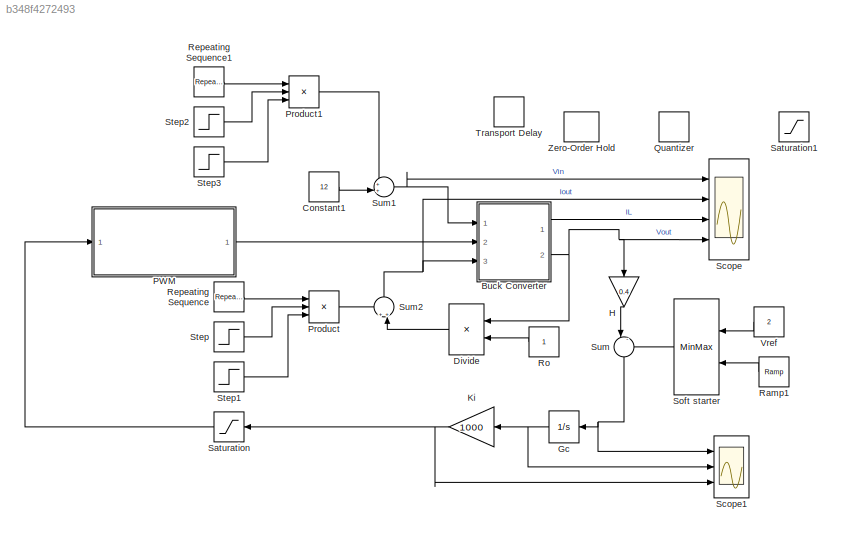
MODEL slx_b348f4272493
KIND model
CONFIG AbsTol = auto
CONFIG EnableMultiTasking = on
CONFIG FixedStep = auto
CONFIG MaxStep = 0.1e-6
CONFIG MinStep = auto
CONFIG RelTol = 1e-3
CONFIG SampleTimeConstraint = Unconstrained
CONFIG Solver = ode45
CONFIG SolverName = ode45
CONFIG StartTime = 0.0
CONFIG StopTime = 0.03
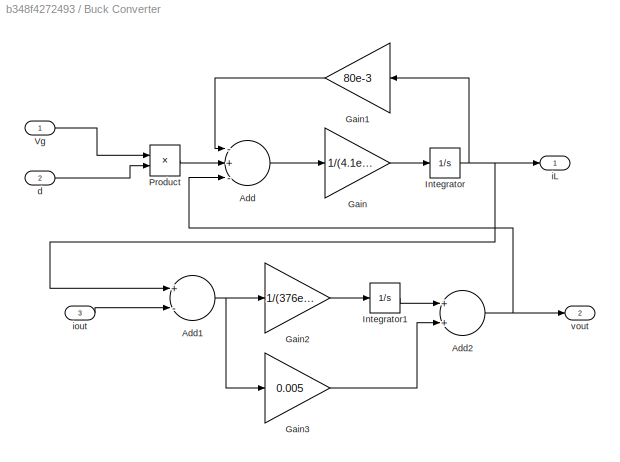
BLOCK [SubSystem] Buck Converter
  Ports = [3, 2]
  RequestExecContextInheritance = off
BLOCK [Sum] Buck Converter/Add
  InputSameDT = off
  Inputs = -+-
  OutDataTypeStr = Inherit: Inherit via internal rule
  Ports = [3, 1]
  SaturateOnIntegerOverflow = off
BLOCK [Sum] Buck Converter/Add1
  InputSameDT = off
  Inputs = +-
  OutDataTypeStr = Inherit: Inherit via internal rule
  Ports = [2, 1]
  SaturateOnIntegerOverflow = off
BLOCK [Sum] Buck Converter/Add2
  InputSameDT = off
  OutDataTypeStr = Inherit: Inherit via internal rule
  Ports = [2, 1]
  SaturateOnIntegerOverflow = off
BLOCK [Gain] Buck Converter/Gain
  Gain = 1/(4.1e-6)
  OutDataTypeStr = Inherit: Inherit via internal rule
  ParamDataTypeStr = Inherit: Inherit via internal rule
  SaturateOnIntegerOverflow = off
BLOCK [Gain] Buck Converter/Gain1
  Gain = 80e-3
  OutDataTypeStr = Inherit: Inherit via internal rule
  ParamDataTypeStr = Inherit: Inherit via internal rule
  SaturateOnIntegerOverflow = off
BLOCK [Gain] Buck Converter/Gain2
  Gain = 1/(376e-6)
  OutDataTypeStr = Inherit: Inherit via internal rule
  ParamDataTypeStr = Inherit: Inherit via internal rule
  SaturateOnIntegerOverflow = off
BLOCK [Gain] Buck Converter/Gain3
  Gain = 0.005
  OutDataTypeStr = Inherit: Inherit via internal rule
  ParamDataTypeStr = Inherit: Inherit via internal rule
  SaturateOnIntegerOverflow = off
BLOCK [Integrator] Buck Converter/Integrator
  Ports = [1, 1]
BLOCK [Integrator] Buck Converter/Integrator1
  Ports = [1, 1]
BLOCK [Product] Buck Converter/Product
  InputSameDT = off
  OutDataTypeStr = Inherit: Inherit via internal rule
  Ports = [2, 1]
  RndMeth = Floor
  SaturateOnIntegerOverflow = off
BLOCK [Inport] Buck Converter/Vg
  IconDisplay = Port number
BLOCK [Inport] Buck Converter/d
  IconDisplay = Port number
  Port = 2
BLOCK [Outport] Buck Converter/iL
  IconDisplay = Port number
BLOCK [Inport] Buck Converter/iout
  IconDisplay = Port number
  Port = 3
BLOCK [Outport] Buck Converter/vout 
  IconDisplay = Port number
  Port = 2
BLOCK [Constant] Constant1
  Value = 12
BLOCK [Product] Divide
  InputSameDT = off
  Inputs = */
  OutDataTypeStr = Inherit: Inherit via internal rule
  Ports = [2, 1]
  RndMeth = Floor
  SaturateOnIntegerOverflow = off
BLOCK [Integrator] Gc
  LowerSaturationLimit = 0.1/1000
  Ports = [1, 1]
  UpperSaturationLimit = 0.9/1000
BLOCK [Gain] H
  Gain = 0.4
  OutDataTypeStr = Inherit: Inherit via internal rule
  ParamDataTypeStr = Inherit: Inherit via internal rule
  SaturateOnIntegerOverflow = off
BLOCK [Gain] Ki
  Gain = 1000
  OutDataTypeStr = Inherit: Inherit via internal rule
  ParamDataTypeStr = Inherit: Inherit via internal rule
  SaturateOnIntegerOverflow = off
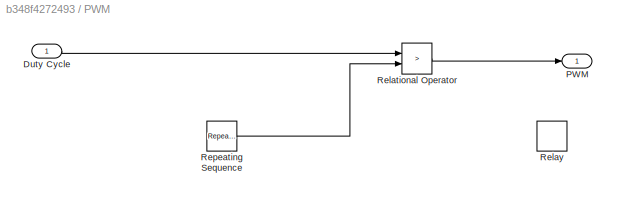
BLOCK [SubSystem] PWM
  Ports = [1, 1]
  RequestExecContextInheritance = off
BLOCK [Inport] PWM/Duty Cycle
  IconDisplay = Port number
BLOCK [Outport] PWM/PWM
  IconDisplay = Port number
BLOCK [RelationalOperator] PWM/Relational Operator
  InputSameDT = off
  Operator = >
  OutDataTypeStr = boolean
  Ports = [2, 1]
BLOCK [Relay] PWM/Relay
BLOCK [Reference] PWM/Repeating Sequence  REF=simulink/Sources/Repeating
Sequence
  Ports = [0, 1]
  SourceBlock = simulink/Sources/Repeating\nSequence
  SourceProductBaseCode = SL
  SourceProductName = Simulink
  SourceType = Repeating table
BLOCK [Product] Product
  InputSameDT = off
  Inputs = 3
  OutDataTypeStr = Inherit: Inherit via internal rule
  Ports = [3, 1]
  RndMeth = Floor
  SaturateOnIntegerOverflow = off
BLOCK [Product] Product1
  InputSameDT = off
  Inputs = 3
  OutDataTypeStr = Inherit: Inherit via internal rule
  Ports = [3, 1]
  RndMeth = Floor
  SaturateOnIntegerOverflow = off
BLOCK [Quantizer] Quantizer
  QuantizationInterval = 1/64
BLOCK [Reference] Ramp1  REF=simulink/Sources/Ramp
  Ports = [0, 1]
  SourceBlock = simulink/Sources/Ramp
  SourceProductBaseCode = SL
  SourceProductName = Simulink
  SourceType = Ramp
BLOCK [Reference] Repeating Sequence  REF=simulink/Sources/Repeating
Sequence
  Ports = [0, 1]
  SourceBlock = simulink/Sources/Repeating\nSequence
  SourceProductBaseCode = SL
  SourceProductName = Simulink
  SourceType = Repeating table
BLOCK [Reference] Repeating Sequence1  REF=simulink/Sources/Repeating
Sequence
  Ports = [0, 1]
  SourceBlock = simulink/Sources/Repeating\nSequence
  SourceProductBaseCode = SL
  SourceProductName = Simulink
  SourceType = Repeating table
BLOCK [Constant] Ro
BLOCK [Saturate] Saturation
  InputPortMap = u0
  LowerLimit = 0.05
  Ports = [1, 1]
  UpperLimit = 0.9
BLOCK [Saturate] Saturation1
  InputPortMap = u0
  LowerLimit = -1
  Ports = [1, 1]
  UpperLimit = 1
BLOCK [Scope] Scope
  Floating = off
  NumInputPorts = 4
  Ports = [4]
  ScopeSpecificationString = Simulink.scopes.TimeScopeBlockCfg('CurrentConfiguration', extmgr.ConfigurationSet(extmgr.Configuration('Core','General UI',true),extmgr.Configuration('Core','Source UI',true),extmgr.Configuration('Sources','WiredSimulink',true,'DataLoggingSaveFormat','StructureWithTime','DataLoggingDecimation','1','DataLoggingDecimateData',true),extmgr.Configuration('Visuals','Time Domain',true,'SerializedDisplays...<+3745ch>
BLOCK [Scope] Scope1
  Floating = off
  NumInputPorts = 3
  Ports = [3]
  ScopeSpecificationString = Simulink.scopes.TimeScopeBlockCfg('CurrentConfiguration', extmgr.ConfigurationSet(extmgr.Configuration('Core','General UI',true),extmgr.Configuration('Core','Source UI',true),extmgr.Configuration('Sources','WiredSimulink',true,'DataLoggingVariableName','ScopeData1','DataLoggingSaveFormat','StructureWithTime','DataLoggingDecimation','1','DataLoggingDecimateData',true),extmgr.Configuration('Visuals'...<+3673ch>
BLOCK [MinMax] Soft starter 
  InputSameDT = off
  Inputs = 2
  Ports = [2, 1]
  SaturateOnIntegerOverflow = off
BLOCK [Step] Step
  SampleTime = 0
  Time = .01
BLOCK [Step] Step1
  After = 0
  Before = 1
  SampleTime = 0
  Time = .013
BLOCK [Step] Step2
  SampleTime = 0
  Time = .02
BLOCK [Step] Step3
  After = 0
  Before = 1
  SampleTime = 0
  Time = .023
BLOCK [Sum] Sum
  IconShape = round
  InputSameDT = off
  Inputs = |-+
  OutDataTypeStr = Inherit: Inherit via internal rule
  Ports = [2, 1]
  SaturateOnIntegerOverflow = off
BLOCK [Sum] Sum1
  IconShape = round
  InputSameDT = off
  Inputs = ++|
  OutDataTypeStr = Inherit: Inherit via internal rule
  Ports = [2, 1]
  SaturateOnIntegerOverflow = off
BLOCK [Sum] Sum2
  IconShape = round
  InputSameDT = off
  Inputs = ++|
  OutDataTypeStr = Inherit: Inherit via internal rule
  Ports = [2, 1]
  SaturateOnIntegerOverflow = off
BLOCK [TransportDelay] Transport Delay
  DelayTime = 4e-6
  Ports = [1, 1]
BLOCK [Constant] Vref
  Value = 2
BLOCK [ZeroOrderHold] Zero-Order Hold
  SampleTime = 10e-6
NET Buck Converter/Add1:1 -> Buck Converter/Gain2:1, Buck Converter/Gain3:1
NET Buck Converter/Add2:1 -> Buck Converter/Add:3, Buck Converter/vout :1
LINE Buck Converter/Add:1 -> Buck Converter/Gain:1
LINE Buck Converter/Gain1:1 -> Buck Converter/Add:1
LINE Buck Converter/Gain2:1 -> Buck Converter/Integrator1:1
LINE Buck Converter/Gain3:1 -> Buck Converter/Add2:2
LINE Buck Converter/Gain:1 -> Buck Converter/Integrator:1
LINE Buck Converter/Integrator1:1 -> Buck Converter/Add2:1
NET Buck Converter/Integrator:1 -> Buck Converter/Add1:1, Buck Converter/Gain1:1, Buck Converter/iL:1
LINE Buck Converter/Product:1 -> Buck Converter/Add:2
LINE Buck Converter/Vg:1 -> Buck Converter/Product:1
LINE Buck Converter/d:1 -> Buck Converter/Product:2
LINE Buck Converter/iout:1 -> Buck Converter/Add1:2
LINE Buck Converter:1 -> Scope:3
NET Buck Converter:2 -> Divide:1, H:1, Scope:4
LINE Constant1:1 -> Sum1:2
LINE Divide:1 -> Sum2:2
NET Gc:1 -> Ki:1, Scope1:2
LINE H:1 -> Sum:1
NET Ki:1 -> Saturation:1, Scope1:3
LINE PWM/Duty Cycle:1 -> PWM/Relational Operator:1
LINE PWM/Relational Operator:1 -> PWM/PWM:1
LINE PWM/Repeating Sequence:1 -> PWM/Relational Operator:2
LINE PWM:1 -> Buck Converter:2
LINE Product1:1 -> Sum1:1
LINE Product:1 -> Sum2:1
LINE Ramp1:1 -> Soft starter :2
LINE Repeating Sequence1:1 -> Product1:1
LINE Repeating Sequence:1 -> Product:1
LINE Ro:1 -> Divide:2
LINE Saturation:1 -> PWM:1
LINE Soft starter :1 -> Sum:2
LINE Step1:1 -> Product:3
LINE Step2:1 -> Product1:2
LINE Step3:1 -> Product1:3
LINE Step:1 -> Product:2
NET Sum1:1 -> Buck Converter:1, Scope:1
NET Sum2:1 -> Buck Converter:3, Scope:2
NET Sum:1 -> Gc:1, Scope1:1
LINE Vref:1 -> Soft starter :1
note: NET lines group one-source signal fan-out (src -> all destinations, sorted); 1:1 wires keep LINE
